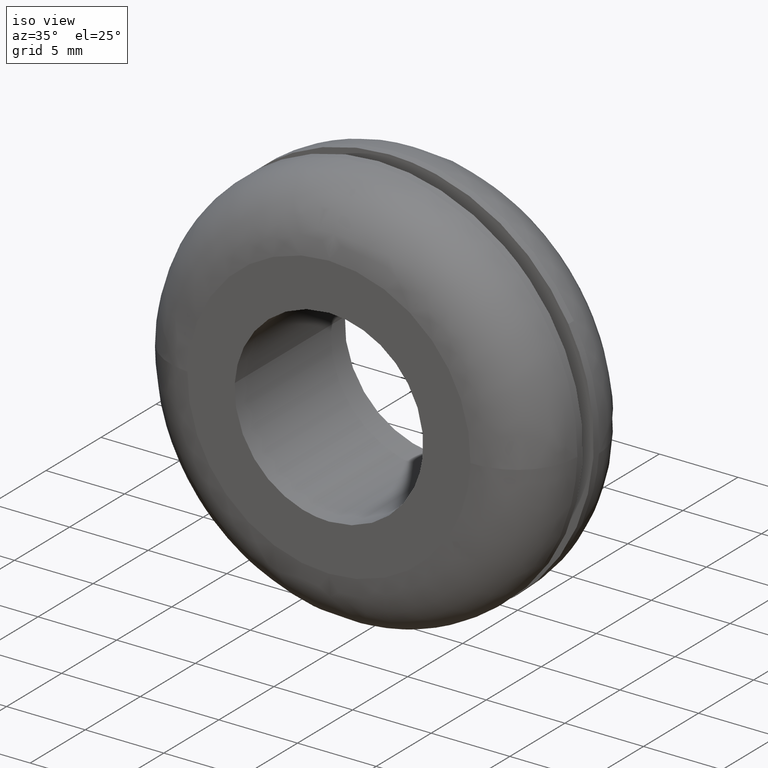
[diagram: clean part render]
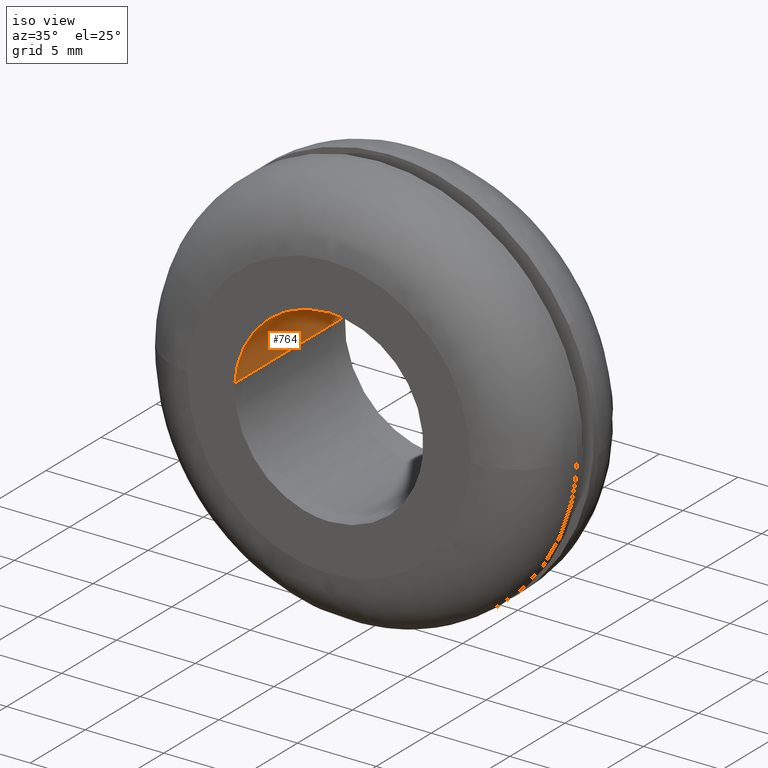
[diagram: same view with one face highlighted and labeled with its STEP entity id]
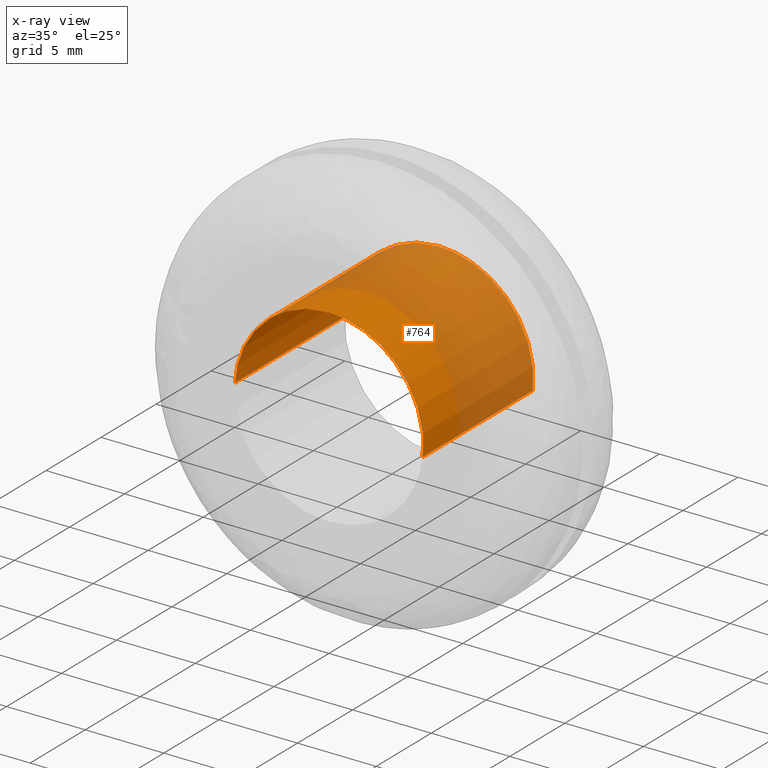
[diagram: x-ray of the same camera — body ghosted, the highlighted face saturated]
A machine part, iso view. The second image highlights one B-rep face of the part: STEP entity #764.
The next image is the same camera in x-ray: the body ghosted, the highlighted face saturated — about 60% of this face is hidden behind the body in this view.
In plain terms, the highlighted face is a freeform B-spline surface patch.
Its self-contained STEP definition (entity closure, byte-faithful):
#662=CARTESIAN_POINT('',(5.958057158181998,10.250000000000002,-0.708205407940551));
#663=CARTESIAN_POINT('',(5.978325692691634,10.250000000000005,-0.537688371827866));
#664=CARTESIAN_POINT('',(5.988808790531200,10.250000000000000,-0.366291237209142));
#665=CARTESIAN_POINT('',(6.355100027740342,10.250000000000002,5.622517553322058));
#666=CARTESIAN_POINT('',(0.366291237209142,10.250000000000000,5.988808790531200));
#667=CARTESIAN_POINT('',(-5.622517553322059,10.250000000000002,6.355100027740342));
#668=CARTESIAN_POINT('',(-5.988808790531200,10.250000000000000,0.366291237209142));
#669=CARTESIAN_POINT('',(5.958057158181998,-0.256250000000001,-0.708205407940551));
#670=CARTESIAN_POINT('',(5.978325692691634,-0.256250000000001,-0.537688371827866));
#671=CARTESIAN_POINT('',(5.988808790531200,-0.256250000000001,-0.366291237209142));
#672=CARTESIAN_POINT('',(6.355100027740342,-0.256250000000001,5.622517553322058));
#673=CARTESIAN_POINT('',(0.366291237209142,-0.256250000000001,5.988808790531200));
#674=CARTESIAN_POINT('',(-5.622517553322059,-0.256250000000002,6.355100027740342));
#675=CARTESIAN_POINT('',(-5.988808790531200,-0.256250000000001,0.366291237209142));
#683=(BOUNDED_SURFACE()B_SPLINE_SURFACE(2,1,((#662,#669),(#663,#670),(#664,#671),(#665,#672),(#666,#673),(#667,#674),(#668,#675)),.UNSPECIFIED.,.F.,.F.,.U.)B_SPLINE_SURFACE_WITH_KNOTS((3,2,2,3),(2,2),(0.0,0.397645019878172,10.338770516832451,20.279896013786729),(0.0,10.506250000000000),.UNSPECIFIED.)GEOMETRIC_REPRESENTATION_ITEM()RATIONAL_B_SPLINE_SURFACE(((0.977505800795127,0.977505800795127),(0.988284271247462,0.988284271247462),(1.0,1.0),(0.707106781186548,0.707106781186548),(1.0,1.0),(0.707106781186548,0.707106781186548),(1.0,1.0)))REPRESENTATION_ITEM('')SURFACE());
#684=CARTESIAN_POINT('',(5.958058402112620,9.999999999999988,-0.708194942727022));
#685=VERTEX_POINT('',#684);
#686=CARTESIAN_POINT('',(0.0,10.0,6.0));
#687=VERTEX_POINT('',#686);
#688=CARTESIAN_POINT('',(5.958058402112620,9.999999999999988,-0.708194942727022));
#689=CARTESIAN_POINT('',(6.0,10.0,-0.355339429987625));
#690=CARTESIAN_POINT('',(6.0,10.0,-2.449213E-016));
#691=CARTESIAN_POINT('',(6.0,10.000000000000002,6.0));
#692=CARTESIAN_POINT('',(0.0,10.0,6.0));
#700=(BOUNDED_CURVE()B_SPLINE_CURVE(2,(#688,#689,#690,#691,#692),.UNSPECIFIED.,.F.,.U.)B_SPLINE_CURVE_WITH_KNOTS((3,2,3),(0.229562770366652,0.250000000000000,0.500000000000000),.UNSPECIFIED.)CURVE()GEOMETRIC_REPRESENTATION_ITEM()RATIONAL_B_SPLINE_CURVE((0.956027336028835,0.976056296116236,1.0,0.707106781186548,1.0))REPRESENTATION_ITEM(''));
#701=EDGE_CURVE('',#685,#687,#700,.T.);
#702=ORIENTED_EDGE('',*,*,#701,.F.);
#703=CARTESIAN_POINT('',(5.958058387127729,-1.658450E-015,-0.708195068797081));
#704=VERTEX_POINT('',#703);
#705=CARTESIAN_POINT('',(5.958058402112620,9.999999999999988,-0.708194942727022));
#706=CARTESIAN_POINT('',(5.958058387127729,-1.658450E-015,-0.708195068797081));
#707=QUASI_UNIFORM_CURVE('',1,(#705,#706),.UNSPECIFIED.,.F.,.U.);
#708=EDGE_CURVE('',#685,#704,#707,.T.);
#709=ORIENTED_EDGE('',*,*,#708,.T.);
#710=CARTESIAN_POINT('',(0.0,-1.102146E-015,6.0));
#711=VERTEX_POINT('',#710);
#712=CARTESIAN_POINT('',(5.958058387127729,-1.658450E-015,-0.708195068797081));
#713=CARTESIAN_POINT('',(6.000000000000001,-1.102146E-015,-0.355339493689020));
#714=CARTESIAN_POINT('',(6.0,-1.102146E-015,-2.449213E-016));
#715=CARTESIAN_POINT('',(6.0,-1.102146E-015,6.0));
#716=CARTESIAN_POINT('',(0.0,-1.102146E-015,6.0));
#724=(BOUNDED_CURVE()B_SPLINE_CURVE(2,(#712,#713,#714,#715,#716),.UNSPECIFIED.,.F.,.U.)B_SPLINE_CURVE_WITH_KNOTS((3,2,3),(0.229562766790611,0.250000000000000,0.500000000000000),.UNSPECIFIED.)CURVE()GEOMETRIC_REPRESENTATION_ITEM()RATIONAL_B_SPLINE_CURVE((0.956027329019629,0.976056291926644,1.0,0.707106781186548,1.0))REPRESENTATION_ITEM(''));
#725=EDGE_CURVE('',#704,#711,#724,.T.);
#726=ORIENTED_EDGE('',*,*,#725,.T.);
#727=CARTESIAN_POINT('',(-5.988808850591350,-1.133940E-015,0.366290255231747));
#728=VERTEX_POINT('',#727);
#729=CARTESIAN_POINT('',(0.0,-1.102146E-015,6.0));
#730=CARTESIAN_POINT('',(-5.644238255849889,-1.102146E-015,6.0));
#731=CARTESIAN_POINT('',(-5.988808850591350,-1.133940E-015,0.366290255231747));
#739=(BOUNDED_CURVE()B_SPLINE_CURVE(2,(#729,#730,#731),.UNSPECIFIED.,.F.,.U.)B_SPLINE_CURVE_WITH_KNOTS((3,3),(0.500000000000000,0.739333018826529),.UNSPECIFIED.)CURVE()GEOMETRIC_REPRESENTATION_ITEM()RATIONAL_B_SPLINE_CURVE((1.0,0.719603926990230,0.976072162944716))REPRESENTATION_ITEM(''));
#740=EDGE_CURVE('',#711,#728,#739,.T.);
#741=ORIENTED_EDGE('',*,*,#740,.T.);
#742=CARTESIAN_POINT('',(-5.988808851322624,10.0,0.366290243275467));
#743=VERTEX_POINT('',#742);
#744=CARTESIAN_POINT('',(-5.988808851322624,10.0,0.366290243275467));
#745=CARTESIAN_POINT('',(-5.988808850591350,-1.133940E-015,0.366290255231747));
#746=QUASI_UNIFORM_CURVE('',1,(#744,#745),.UNSPECIFIED.,.F.,.U.);
#747=EDGE_CURVE('',#743,#728,#746,.T.);
#748=ORIENTED_EDGE('',*,*,#747,.F.);
#749=CARTESIAN_POINT('',(0.0,10.0,6.0));
#750=CARTESIAN_POINT('',(-5.644238278428738,10.0,6.000000000000001));
#751=CARTESIAN_POINT('',(-5.988808851322624,10.0,0.366290243275467));
#759=(BOUNDED_CURVE()B_SPLINE_CURVE(2,(#749,#750,#751),.UNSPECIFIED.,.F.,.U.)B_SPLINE_CURVE_WITH_KNOTS((3,3),(0.500000000000000,0.739333019515486),.UNSPECIFIED.)CURVE()GEOMETRIC_REPRESENTATION_ITEM()RATIONAL_B_SPLINE_CURVE((1.0,0.719603926183065,0.976072164421284))REPRESENTATION_ITEM(''));
#760=EDGE_CURVE('',#687,#743,#759,.T.);
#761=ORIENTED_EDGE('',*,*,#760,.F.);
#762=EDGE_LOOP('',(#702,#709,#726,#741,#748,#761));
#763=FACE_OUTER_BOUND('',#762,.T.);
#764=ADVANCED_FACE('',(#763),#683,.F.);